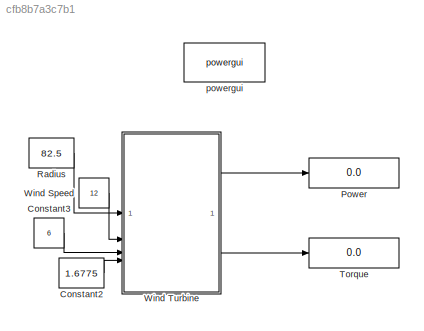
MODEL slx_cfb8b7a3c7b1
KIND model
CONFIG AbsTol = auto
CONFIG EnableMultiTasking = off
CONFIG FixedStep = auto
CONFIG MaxStep = auto
CONFIG MinStep = auto
CONFIG RelTol = 1e-3
CONFIG SampleTimeConstraint = Unconstrained
CONFIG SolverName = VariableStepAuto
CONFIG StartTime = 0.0
CONFIG StopTime = 10.0
BLOCK [Constant] Constant2
  Value = 1.6775
BLOCK [Constant] Constant3
  Value = 6
BLOCK [Display] Power
  Decimation = 1
BLOCK [Constant] Radius
  Value = 82.5
BLOCK [Display] Torque
  Decimation = 1
BLOCK [Constant] Wind Speed
  Value = 12
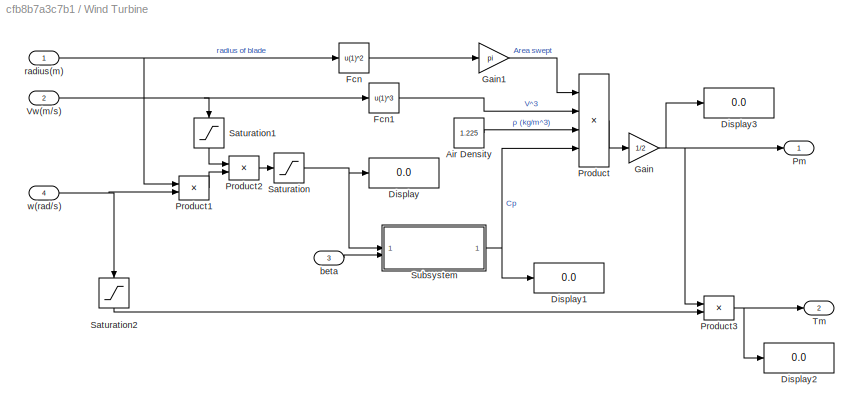
BLOCK [SubSystem] Wind Turbine
BLOCK [Constant] Wind Turbine/Air Density
  Value = 1.225
BLOCK [Display] Wind Turbine/Display
  Decimation = 1
BLOCK [Display] Wind Turbine/Display1
  Decimation = 1
BLOCK [Display] Wind Turbine/Display2
  Decimation = 1
BLOCK [Display] Wind Turbine/Display3
  Decimation = 1
BLOCK [Fcn] Wind Turbine/Fcn
  Expr = u(1)^2
BLOCK [Fcn] Wind Turbine/Fcn1
  Expr = u(1)^3
BLOCK [Gain] Wind Turbine/Gain
  Gain = 1/2
BLOCK [Gain] Wind Turbine/Gain1
  Gain = pi
BLOCK [Outport] Wind Turbine/Pm
BLOCK [Product] Wind Turbine/Product
  Inputs = 4
BLOCK [Product] Wind Turbine/Product1
BLOCK [Product] Wind Turbine/Product2
  Inputs = /*
BLOCK [Product] Wind Turbine/Product3
  Inputs = /*
BLOCK [Saturate] Wind Turbine/Saturation
  LowerLimit = 1e-6
  UpperLimit = inf
BLOCK [Saturate] Wind Turbine/Saturation1
  LowerLimit = 1e-6
  NameLocation = left
  UpperLimit = inf
BLOCK [Saturate] Wind Turbine/Saturation2
  LowerLimit = 1e-6
  NameLocation = left
  UpperLimit = inf
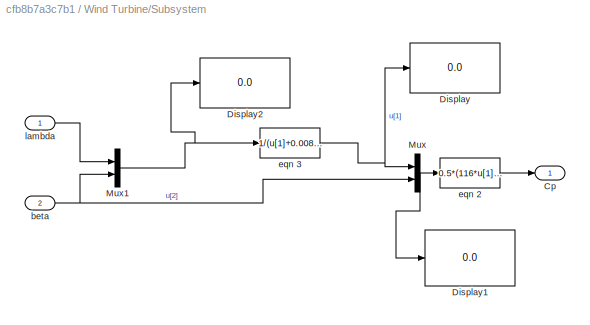
BLOCK [SubSystem] Wind Turbine/Subsystem
BLOCK [Outport] Wind Turbine/Subsystem/Cp
BLOCK [Display] Wind Turbine/Subsystem/Display
  Decimation = 1
BLOCK [Display] Wind Turbine/Subsystem/Display1
  Decimation = 1
BLOCK [Display] Wind Turbine/Subsystem/Display2
  Decimation = 1
BLOCK [Mux] Wind Turbine/Subsystem/Mux
  DisplayOption = bar
  Inputs = 2
BLOCK [Mux] Wind Turbine/Subsystem/Mux1
  DisplayOption = bar
  Inputs = 2
BLOCK [Inport] Wind Turbine/Subsystem/beta
  Port = 2
BLOCK [Fcn] Wind Turbine/Subsystem/eqn 2
  Expr = 0.5*(116*u[1]-0.4*u[2]-5)*exp(-21*u[1])
BLOCK [Fcn] Wind Turbine/Subsystem/eqn 3
  Expr = 1/(u[1]+0.008*u[2])-0.035/(1+u[2]^3)
BLOCK [Inport] Wind Turbine/Subsystem/lambda
BLOCK [Outport] Wind Turbine/Tm
  Port = 2
BLOCK [Inport] Wind Turbine/Vw(m//s)
  Port = 2
BLOCK [Inport] Wind Turbine/beta
  Port = 3
BLOCK [Inport] Wind Turbine/radius(m)
BLOCK [Inport] Wind Turbine/w(rad//s)
  Port = 4
BLOCK [Reference] powergui  REF=spspowerguiLib/powergui
  LibrarySourceBlock = sps_lib/powergui
  Priority = 1
  SourceBlock = spspowerguiLib/powergui
  SourceType = PSB option menu block
LINE Constant2:1 -> Wind Turbine:4
LINE Constant3:1 -> Wind Turbine:3
LINE Radius:1 -> Wind Turbine:1
LINE Wind Speed:1 -> Wind Turbine:2
LINE Wind Turbine/Air Density:1 -> Wind Turbine/Product:3
LINE Wind Turbine/Fcn1:1 -> Wind Turbine/Product:2
LINE Wind Turbine/Fcn:1 -> Wind Turbine/Gain1:1
LINE Wind Turbine/Gain1:1 -> Wind Turbine/Product:1
NET Wind Turbine/Gain:1 -> Wind Turbine/Display3:1, Wind Turbine/Pm:1, Wind Turbine/Product3:1
LINE Wind Turbine/Product1:1 -> Wind Turbine/Product2:2
LINE Wind Turbine/Product2:1 -> Wind Turbine/Saturation:1
NET Wind Turbine/Product3:1 -> Wind Turbine/Display2:1, Wind Turbine/Tm:1
LINE Wind Turbine/Product:1 -> Wind Turbine/Gain:1
LINE Wind Turbine/Saturation1:1 -> Wind Turbine/Product2:1
LINE Wind Turbine/Saturation2:1 -> Wind Turbine/Product3:2
NET Wind Turbine/Saturation:1 -> Wind Turbine/Display:1, Wind Turbine/Subsystem:1
NET Wind Turbine/Subsystem/Mux1:1 -> Wind Turbine/Subsystem/Display2:1, Wind Turbine/Subsystem/eqn 3:1
NET Wind Turbine/Subsystem/Mux:1 -> Wind Turbine/Subsystem/Display1:1, Wind Turbine/Subsystem/eqn 2:1
NET Wind Turbine/Subsystem/beta:1 -> Wind Turbine/Subsystem/Mux1:2, Wind Turbine/Subsystem/Mux:2
LINE Wind Turbine/Subsystem/eqn 2:1 -> Wind Turbine/Subsystem/Cp:1
NET Wind Turbine/Subsystem/eqn 3:1 -> Wind Turbine/Subsystem/Display:1, Wind Turbine/Subsystem/Mux:1
LINE Wind Turbine/Subsystem/lambda:1 -> Wind Turbine/Subsystem/Mux1:1
NET Wind Turbine/Subsystem:1 -> Wind Turbine/Display1:1, Wind Turbine/Product:4
NET Wind Turbine/Vw(m//s):1 -> Wind Turbine/Fcn1:1, Wind Turbine/Saturation1:1
LINE Wind Turbine/beta:1 -> Wind Turbine/Subsystem:2
NET Wind Turbine/radius(m):1 -> Wind Turbine/Fcn:1, Wind Turbine/Product1:1
NET Wind Turbine/w(rad//s):1 -> Wind Turbine/Product1:2, Wind Turbine/Saturation2:1
LINE Wind Turbine:1 -> Power:1
LINE Wind Turbine:2 -> Torque:1
note: NET lines group one-source signal fan-out (src -> all destinations, sorted); 1:1 wires keep LINE
